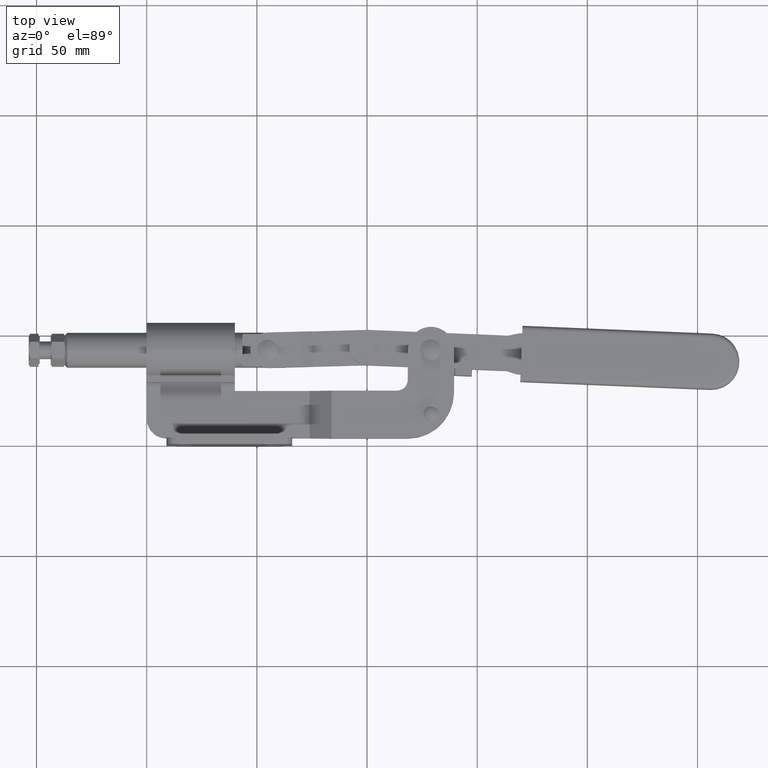
[diagram: clean part render]
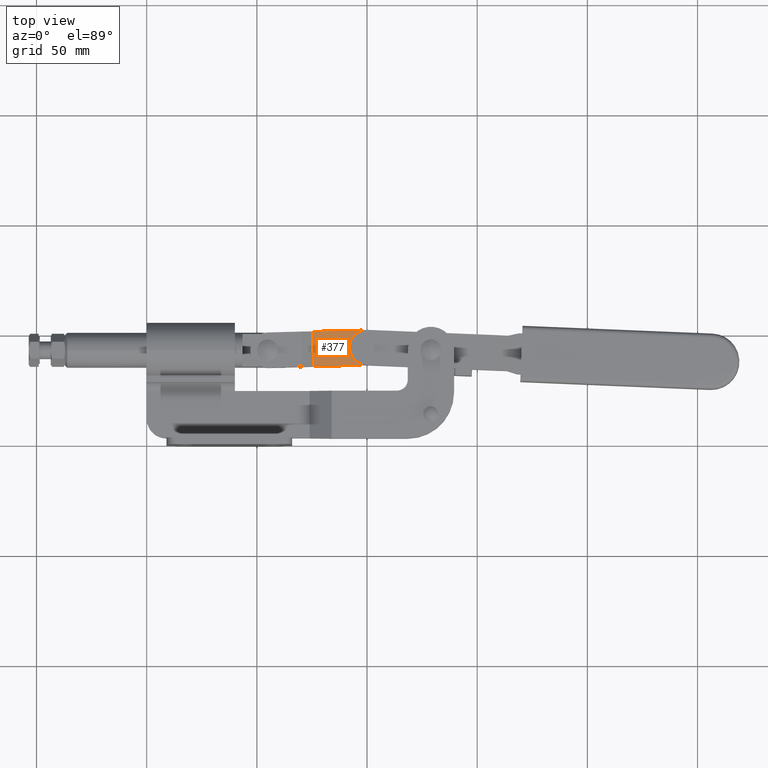
[diagram: same view with one face highlighted and labeled with its STEP entity id]
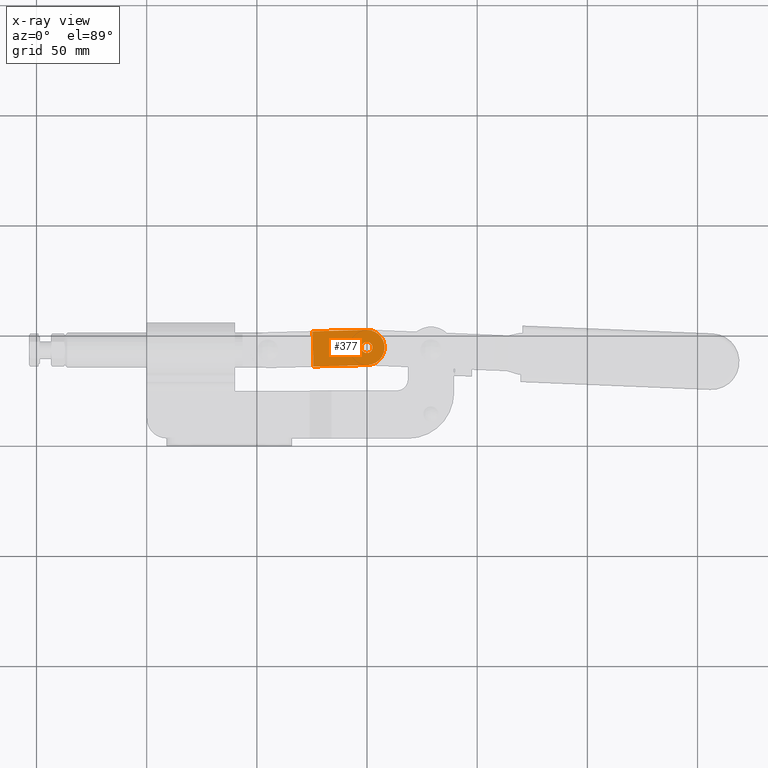
[diagram: x-ray of the same camera — body ghosted, the highlighted face saturated]
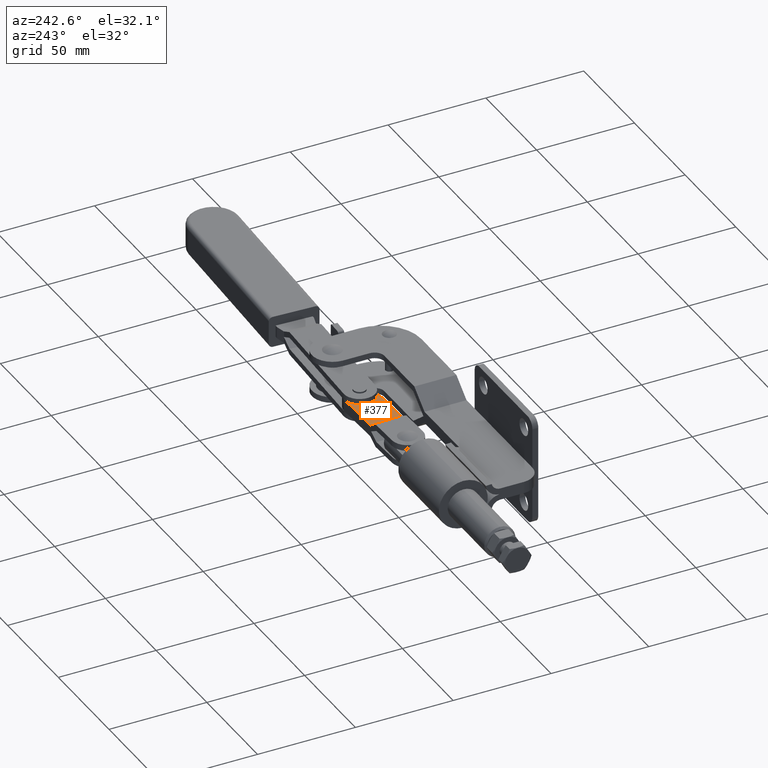
[diagram: same view with one face highlighted and labeled with its STEP entity id]
A machine part, top view. The second image highlights one B-rep face of the part: STEP entity #377.
The next image is the same camera in x-ray: the body ghosted, the highlighted face saturated — about 0% of this face is hidden behind the body in this view.
A second angle (auxiliary view) of the same face is appended — the face is thin or edge-on in the first view.
In plain terms, the highlighted planar face has unit normal (0, 0, -1).
Its self-contained STEP definition (entity closure, byte-faithful):
#103 = CARTESIAN_POINT ( 'NONE',  ( 75.70438498018377500, 35.54537948000301400, -7.985681531188728100 ) ) ;
#377 = ADVANCED_FACE ( 'NONE', ( #1704, #6577 ), #1212, .F. ) ;
#603 = AXIS2_PLACEMENT_3D ( 'NONE', #2821, #2101, #2296 ) ;
#740 = EDGE_CURVE ( 'NONE', #3028, #4815, #7138, .T. ) ;
#1212 = PLANE ( 'NONE',  #1949 ) ;
#1474 = CARTESIAN_POINT ( 'NONE',  ( 99.77296484117410100, 52.18729834397866100, -7.985681531188728100 ) ) ;
#1599 = DIRECTION ( 'NONE',  ( -0.02642888688065738600, 0.9996506959624693600, 6.268426444242532200E-018 ) ) ;
#1619 = VERTEX_POINT ( 'NONE', #7753 ) ;
#1629 = VERTEX_POINT ( 'NONE', #103 ) ;
#1685 = EDGE_CURVE ( 'NONE', #5970, #1619, #6128, .T. ) ;
#1704 = FACE_OUTER_BOUND ( 'NONE', #5908, .T. ) ;
#1745 = EDGE_CURVE ( 'NONE', #3028, #1629, #3707, .T. ) ;
#1864 = AXIS2_PLACEMENT_3D ( 'NONE', #2031, #3080, #2118 ) ;
#1949 = AXIS2_PLACEMENT_3D ( 'NONE', #4014, #2184, #1599 ) ;
#1951 = VECTOR ( 'NONE', #2692, 1000.000000000000100 ) ;
#2031 = CARTESIAN_POINT ( 'NONE',  ( 99.98439593621935700, 44.19009277627888800, -7.985681531188731700 ) ) ;
#2101 = DIRECTION ( 'NONE',  ( 0.0000000000000000000, 0.0000000000000000000, 1.000000000000000000 ) ) ;
#2118 = DIRECTION ( 'NONE',  ( 1.000000000000000000, 0.0000000000000000000, 0.0000000000000000000 ) ) ;
#2184 = DIRECTION ( 'NONE',  ( 4.104683562363278000E-017, 7.355818036688015800E-018, -1.000000000000000000 ) ) ;
#2228 = DIRECTION ( 'NONE',  ( 0.9996506959624693600, 0.02642888688065738600, 4.122690388102789500E-017 ) ) ;
#2235 = VECTOR ( 'NONE', #2228, 1000.000000000000100 ) ;
#2296 = DIRECTION ( 'NONE',  ( 1.000000000000000000, 0.0000000000000000000, 0.0000000000000000000 ) ) ;
#2692 = DIRECTION ( 'NONE',  ( 0.9996506959624693600, 0.02642888688065738600, 4.122690388102789500E-017 ) ) ;
#2821 = CARTESIAN_POINT ( 'NONE',  ( 99.98439593621935700, 44.19009277627888800, -7.985681531188731700 ) ) ;
#2901 = ORIENTED_EDGE ( 'NONE', *, *, #6776, .T. ) ;
#2908 = CARTESIAN_POINT ( 'NONE',  ( 97.48439593621935700, 44.19009277627888800, -7.985681531188731700 ) ) ;
#3028 = VERTEX_POINT ( 'NONE', #4510 ) ;
#3080 = DIRECTION ( 'NONE',  ( 0.0000000000000000000, 0.0000000000000000000, 1.000000000000000000 ) ) ;
#3190 = CIRCLE ( 'NONE', #603, 2.500000000000002200 ) ;
#3274 = CARTESIAN_POINT ( 'NONE',  ( 99.98439593621935700, 44.19009277627888800, -7.985681531188728100 ) ) ;
#3707 = LINE ( 'NONE', #6332, #7001 ) ;
#3873 = CIRCLE ( 'NONE', #4335, 8.000000000000014200 ) ;
#3993 = ORIENTED_EDGE ( 'NONE', *, *, #1685, .F. ) ;
#4014 = CARTESIAN_POINT ( 'NONE',  ( 75.28152279009326300, 51.53979061540252400, -7.985681531188728100 ) ) ;
#4335 = AXIS2_PLACEMENT_3D ( 'NONE', #3274, #5794, #7463 ) ;
#4510 = CARTESIAN_POINT ( 'NONE',  ( 75.28152279009326300, 51.53979061540252400, -7.985681531188728100 ) ) ;
#4815 = VERTEX_POINT ( 'NONE', #1474 ) ;
#5092 = ORIENTED_EDGE ( 'NONE', *, *, #740, .F. ) ;
#5361 = VERTEX_POINT ( 'NONE', #7288 ) ;
#5465 = EDGE_CURVE ( 'NONE', #1619, #5970, #3190, .T. ) ;
#5794 = DIRECTION ( 'NONE',  ( 4.104683562363278600E-017, 7.355818036688025100E-018, -1.000000000000000000 ) ) ;
#5908 = EDGE_LOOP ( 'NONE', ( #6812, #5092, #6310, #2901 ) ) ;
#5919 = EDGE_CURVE ( 'NONE', #4815, #5361, #3873, .T. ) ;
#5970 = VERTEX_POINT ( 'NONE', #2908 ) ;
#6030 = EDGE_LOOP ( 'NONE', ( #6642, #3993 ) ) ;
#6128 = CIRCLE ( 'NONE', #1864, 2.500000000000002200 ) ;
#6310 = ORIENTED_EDGE ( 'NONE', *, *, #1745, .T. ) ;
#6332 = CARTESIAN_POINT ( 'NONE',  ( 75.28152279009326300, 51.53979061540252400, -7.985681531188728100 ) ) ;
#6577 = FACE_BOUND ( 'NONE', #6030, .T. ) ;
#6642 = ORIENTED_EDGE ( 'NONE', *, *, #5465, .F. ) ;
#6776 = EDGE_CURVE ( 'NONE', #1629, #5361, #6852, .T. ) ;
#6812 = ORIENTED_EDGE ( 'NONE', *, *, #5919, .F. ) ;
#6852 = LINE ( 'NONE', #7008, #1951 ) ;
#7001 = VECTOR ( 'NONE', #7399, 1000.000000000000100 ) ;
#7008 = CARTESIAN_POINT ( 'NONE',  ( 75.70438498018377500, 35.54537948000301400, -7.985681531188728100 ) ) ;
#7138 = LINE ( 'NONE', #7767, #2235 ) ;
#7288 = CARTESIAN_POINT ( 'NONE',  ( 100.1958270312646100, 36.19288720857912300, -7.985681531188728100 ) ) ;
#7399 = DIRECTION ( 'NONE',  ( 0.02642888688065738600, -0.9996506959624693600, -6.268426444242532200E-018 ) ) ;
#7463 = DIRECTION ( 'NONE',  ( -0.02642888688065762200, 0.9996506959624693600, 0.0000000000000000000 ) ) ;
#7753 = CARTESIAN_POINT ( 'NONE',  ( 102.4843959362193600, 44.19009277627888800, -7.985681531188731700 ) ) ;
#7767 = CARTESIAN_POINT ( 'NONE',  ( 75.28152279009326300, 51.53979061540252400, -7.985681531188728100 ) ) ;